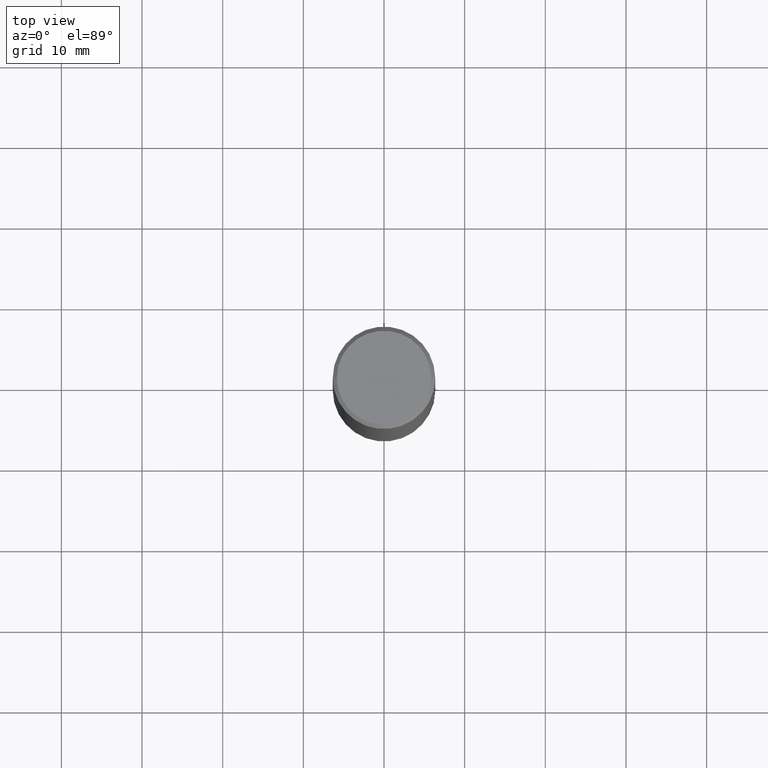
[diagram: clean part render]
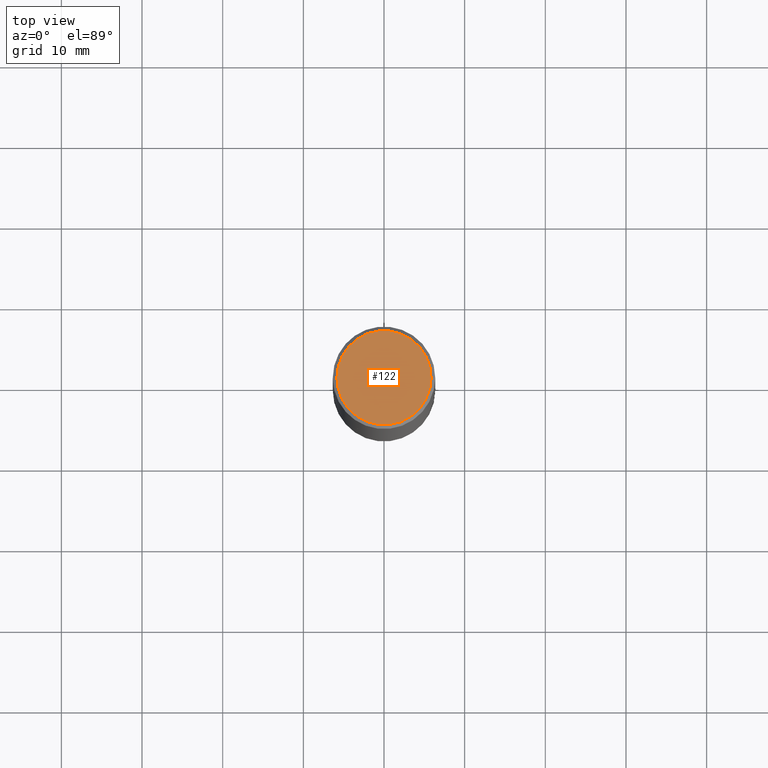
[diagram: same view with one face highlighted and labeled with its STEP entity id]
A machine part, top view. The second image highlights one B-rep face of the part: STEP entity #122.
In plain terms, the highlighted planar face has unit normal (0, -0, -1).
Its self-contained STEP definition (entity closure, byte-faithful):
#18 = VERTEX_POINT ( 'NONE', #186 ) ;
#77 = CARTESIAN_POINT ( 'NONE',  ( 1.606081415867839490E-15, 0.2299999999999997602, -8.009064516888724897E-16 ) ) ;
#97 = FACE_OUTER_BOUND ( 'NONE', #166, .T. ) ;
#99 = CARTESIAN_POINT ( 'NONE',  ( -1.043851414335219820E-46, 1.490343170380447200E-32, 4.268512490100411279E-18 ) ) ;
#101 = DIRECTION ( 'NONE',  ( -2.445468806185136597E-29, 3.491481338843145583E-15, 1.000000000000000000 ) ) ;
#108 = EDGE_CURVE ( 'NONE', #18, #294, #123, .T. ) ;
#122 = ADVANCED_FACE ( 'NONE', ( #97 ), #352, .F. ) ;
#123 = CIRCLE ( 'NONE', #334, 0.2299999999999997602 ) ;
#124 = DIRECTION ( 'NONE',  ( 1.000000000000000000, -6.982962677686267499E-15, 4.876225828469313926E-29 ) ) ;
#151 = AXIS2_PLACEMENT_3D ( 'NONE', #77, #152, #178 ) ;
#152 = DIRECTION ( 'NONE',  ( 2.438088387897960049E-29, -3.491481338843145188E-15, -1.000000000000000000 ) ) ;
#166 = EDGE_LOOP ( 'NONE', ( #322, #182 ) ) ;
#178 = DIRECTION ( 'NONE',  ( -1.000000000000000000, 6.982962677686265922E-15, -4.876176775795935793E-29 ) ) ;
#179 = EDGE_CURVE ( 'NONE', #294, #18, #193, .T. ) ;
#182 = ORIENTED_EDGE ( 'NONE', *, *, #179, .T. ) ;
#186 = CARTESIAN_POINT ( 'NONE',  ( -0.2299999999999997602, 1.640996229256270941E-15, 4.268512490089056766E-18 ) ) ;
#193 = CIRCLE ( 'NONE', #206, 0.2299999999999997602 ) ;
#206 = AXIS2_PLACEMENT_3D ( 'NONE', #99, #101, #124 ) ;
#210 = DIRECTION ( 'NONE',  ( 1.000000000000000000, -6.982962677686267499E-15, 4.876225828469313926E-29 ) ) ;
#294 = VERTEX_POINT ( 'NONE', #338 ) ;
#295 = CARTESIAN_POINT ( 'NONE',  ( -1.043851414335219820E-46, 1.490343170380447200E-32, 4.268512490100411279E-18 ) ) ;
#322 = ORIENTED_EDGE ( 'NONE', *, *, #108, .T. ) ;
#334 = AXIS2_PLACEMENT_3D ( 'NONE', #295, #354, #210 ) ;
#338 = CARTESIAN_POINT ( 'NONE',  ( 0.2299999999999997602, -1.681434332853597631E-15, 4.268512490111905999E-18 ) ) ;
#352 = PLANE ( 'NONE',  #151 ) ;
#354 = DIRECTION ( 'NONE',  ( -2.445468806185136597E-29, 3.491481338843145583E-15, 1.000000000000000000 ) ) ;